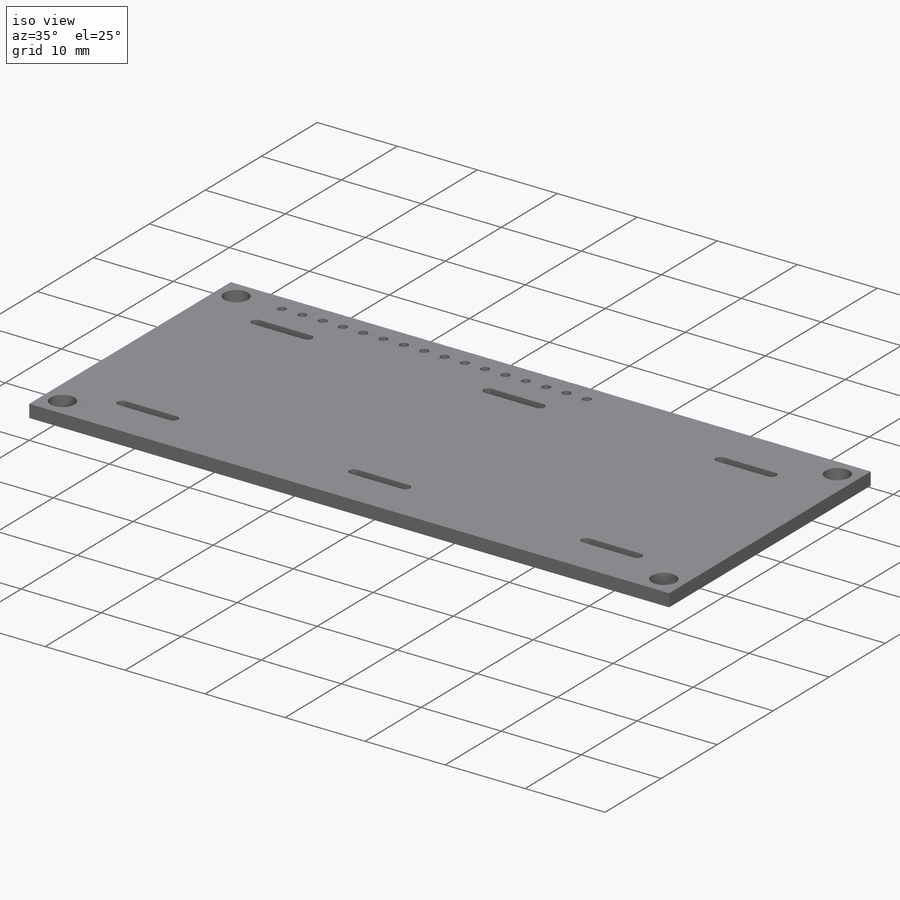
[diagram: iso view]
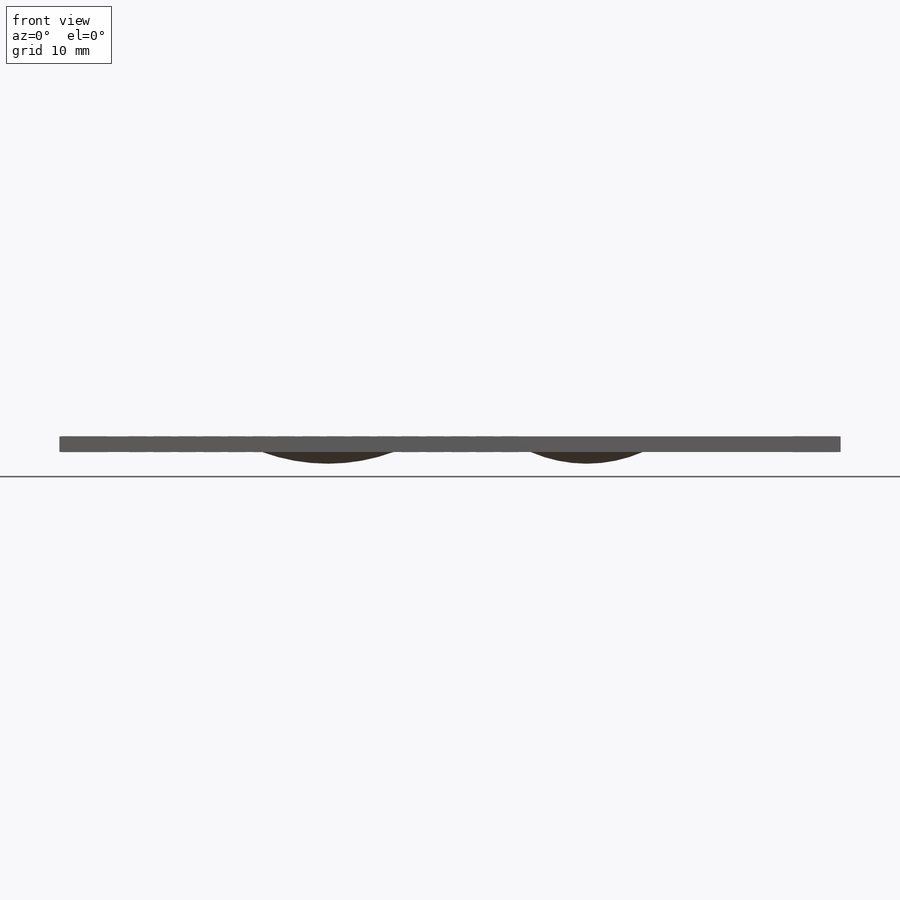
[diagram: front view]
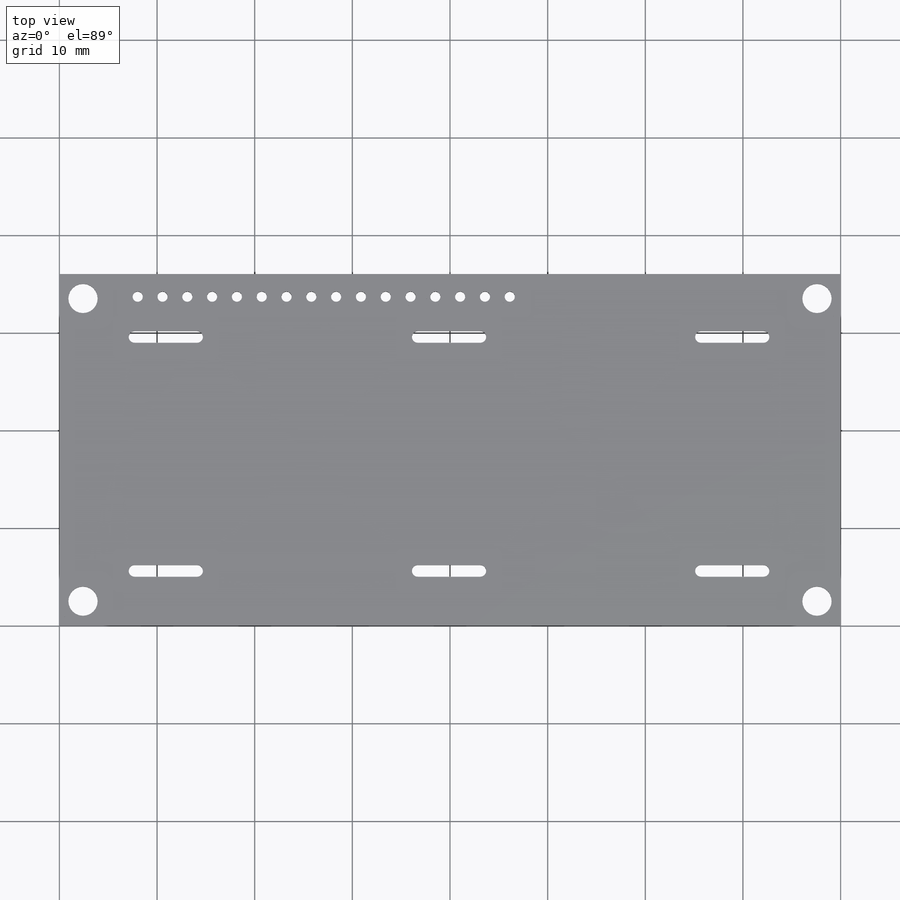
[diagram: top view]
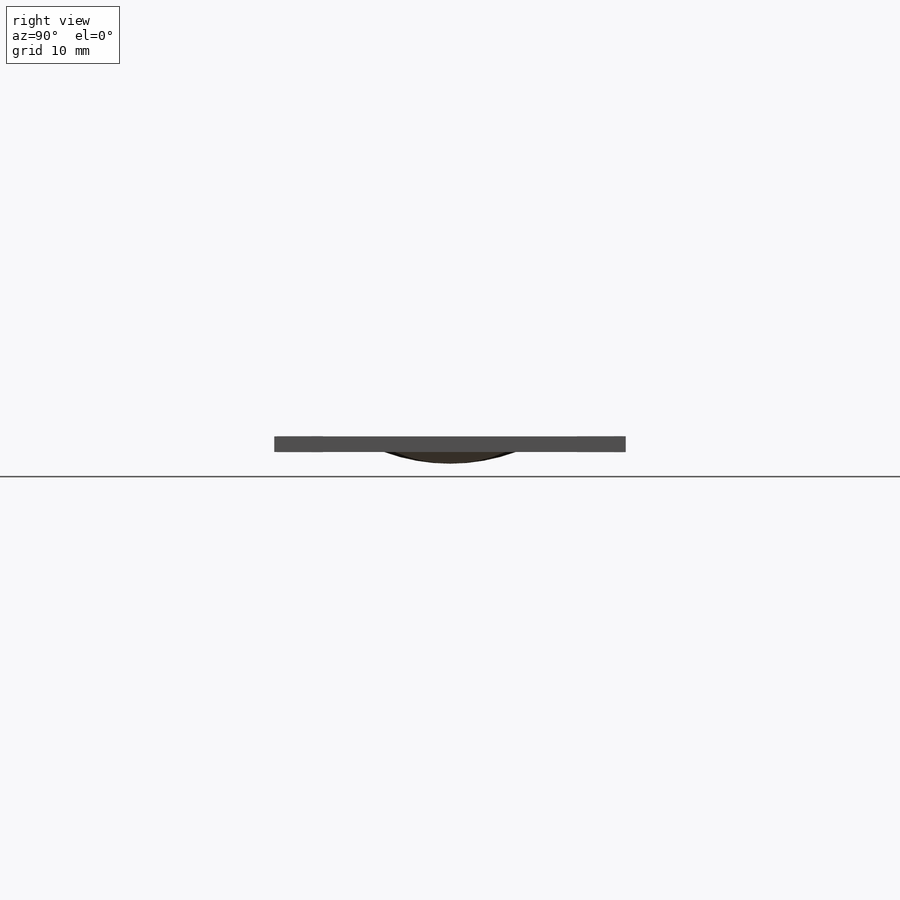
[diagram: right view]
SOLIDWORKS PART (.sldprt)
format: sldprt  version: not decoded by parser v0  size: 574,464 bytes
history: native  units: mm
features: sketch x5, plane x4, extrude x3, revolve x2, material x1 (+10 scaffold rows collapsed)
feature tree (25):
  scaffold x10  (default folders/planes/origin — collapsed)
  material  "Matériau <non spécifié>"
  plane  "Plan de face"
  plane  "Plan de dessus"
  plane  "Plan de droite"
  sketch  "Esquisse1"  dims[c1.D3=3.0mm c1.D8=1.04mm c1.D10=1.2mm c1.D16=0.6mm c1.D1=80.0mm c1.D2=36.0mm c1.D4=31.0mm c1.D5=75.16mm c1.D6=2.32mm c1.D7=8.02mm c1.D11=6.4mm c1.D12=5.0mm c1.D13=7.7mm c1.D14=5.84mm c1.D15=7.7mm c1.D17=~4.975709mm c1.D18=7.7mm c1.D9=16.0 c2.D17=3.0]
  extrude  "Boss.-Extru.1"  Depth=1.6mm
  sketch  "Esquisse2"  dims[D1=1.8mm D2=5.0mm D5=5.0mm D8=5.0mm D11=5.0mm D3=0.3mm D4=0.3mm D6=0.3mm D7=0.3mm D9=0.3mm D10=0.3mm D12=0.3mm D13=0.3mm D14=16.0]
  extrude  "Boss.-Extru.2"  Depth=0.01mm
  extrude  "Boss.-Extru.3"  [1 undecoded]
  sketch  "Esquisse2<2>"  dims[D1=0.01mm]
  plane  "Plan1"  Offset=18mm
  sketch  "Esquisse3"  dims[D1=26.5mm D2=27.5mm D3=1.2mm D4=5.75mm D5=5.75mm D6=6.75mm D7=6.75mm]
  revolve  "Révolution1"  Angle=360deg
  revolve  "Révolution2"  [1 undecoded]
  sketch  "Esquisse3<6>"  dims[D1=360.0deg]
decode coverage: 8 of 10 modeling features carry decoded parameters
note: ~ marks probable driven/reference dimensions
note: 2 parameter values undecoded
note: suppression state not decoded; provenance and decode notes live in map.json
